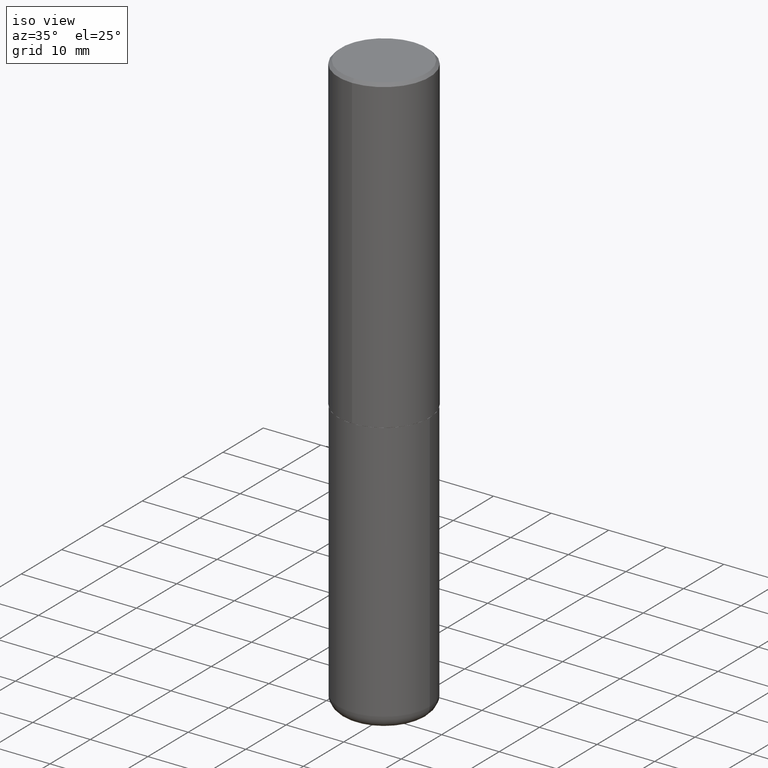
[diagram: clean part render]
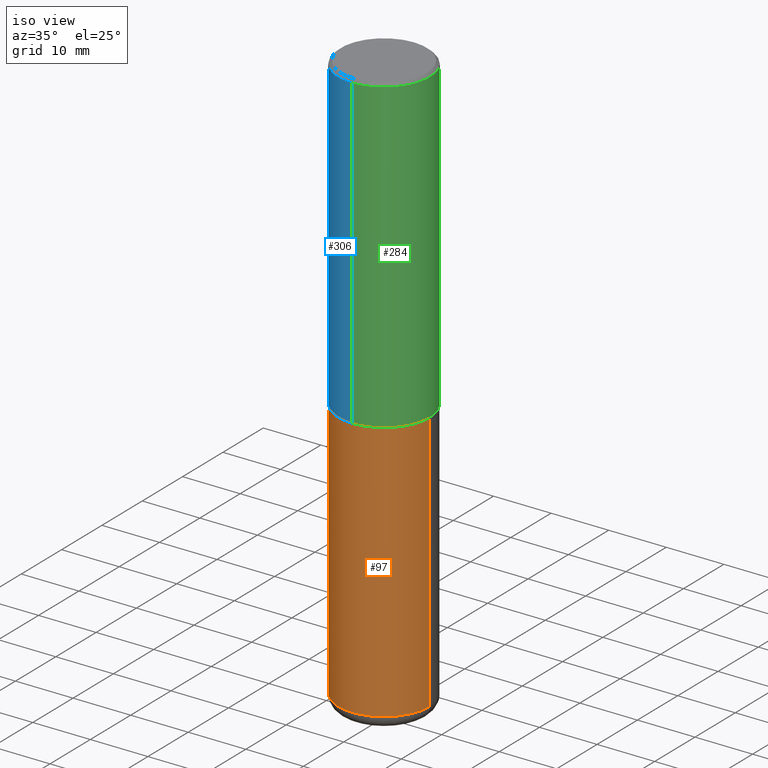
[diagram: same view with three faces highlighted in distinct colors, each labeled with its STEP entity id]
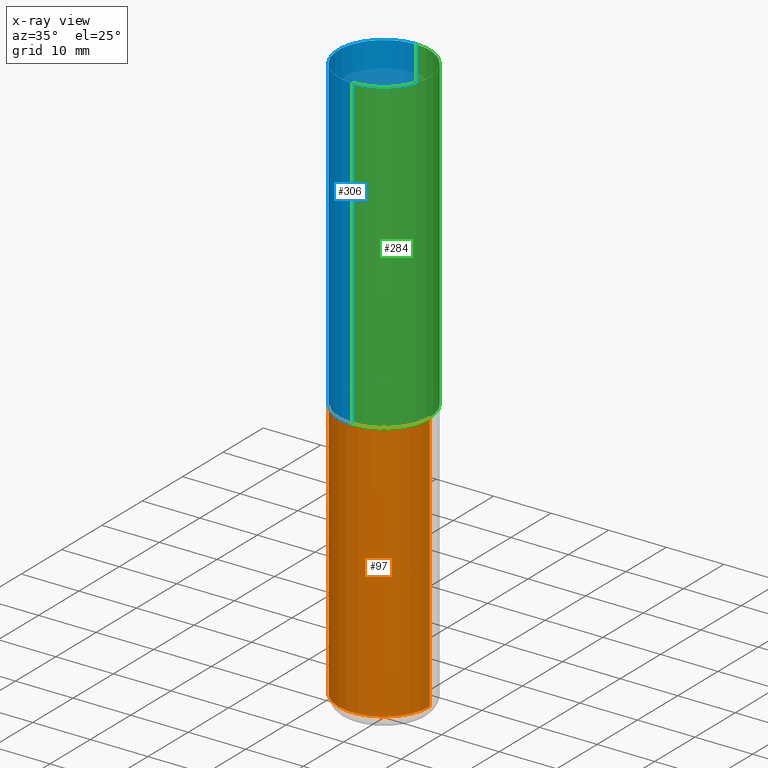
[diagram: x-ray of the same camera — body ghosted, the three highlighted faces saturated]
A machine part, iso view with three faces highlighted in distinct colors.
The next image is the same camera in x-ray (body ghosted, the three faces saturated) — at least one of them is partly hidden behind the body in this view.
Their STEP definitions:

[orange] entity #97 — the highlighted cylindrical surface (partial cylindrical patch) has radius 7.9375 mm, axis along (-0, 0, 1).
#19 = ORIENTED_EDGE ( 'NONE', *, *, #157, .F. ) ;
#21 = EDGE_CURVE ( 'NONE', #214, #342, #233, .T. ) ;
#40 = DIRECTION ( 'NONE',  ( 1.000000000000000000, -6.982962677686266711E-15, 4.876176775795936353E-29 ) ) ;
#62 = DIRECTION ( 'NONE',  ( -2.445468806185136877E-29, 3.491481338843145188E-15, 1.000000000000000000 ) ) ;
#65 = CARTESIAN_POINT ( 'NONE',  ( 0.3125000000000000000, -2.182175836776958347E-15, 1.523805242436230075E-29 ) ) ;
#71 = ORIENTED_EDGE ( 'NONE', *, *, #21, .T. ) ;
#74 = LINE ( 'NONE', #65, #406 ) ;
#84 = VERTEX_POINT ( 'NONE', #325 ) ;
#97 = ADVANCED_FACE ( 'NONE', ( #408 ), #409, .T. ) ;
#104 = CARTESIAN_POINT ( 'NONE',  ( 5.196621213143414147E-29, -7.419397845041682046E-15, -2.124999999999999556 ) ) ;
#111 = DIRECTION ( 'NONE',  ( 1.000000000000000000, -6.982962677686269077E-15, 0.000000000000000000 ) ) ;
#122 = AXIS2_PLACEMENT_3D ( 'NONE', #177, #266, #111 ) ;
#155 = ORIENTED_EDGE ( 'NONE', *, *, #345, .F. ) ;
#157 = EDGE_CURVE ( 'NONE', #214, #287, #219, .T. ) ;
#177 = CARTESIAN_POINT ( 'NONE',  ( 9.561783032183883600E-29, -1.365169203487670064E-14, -3.910000000000000142 ) ) ;
#187 = ORIENTED_EDGE ( 'NONE', *, *, #202, .T. ) ;
#202 = EDGE_CURVE ( 'NONE', #342, #84, #74, .T. ) ;
#214 = VERTEX_POINT ( 'NONE', #260 ) ;
#219 = LINE ( 'NONE', #385, #280 ) ;
#223 = EDGE_LOOP ( 'NONE', ( #19, #71, #187, #155 ) ) ;
#233 = CIRCLE ( 'NONE', #122, 0.3125000000000000000 ) ;
#260 = CARTESIAN_POINT ( 'NONE',  ( -0.3125000000000000000, -1.143124598562638756E-14, -3.910000000000000142 ) ) ;
#266 = DIRECTION ( 'NONE',  ( -2.445468806185136597E-29, 3.491481338843145583E-15, 1.000000000000000000 ) ) ;
#280 = VECTOR ( 'NONE', #62, 39.37007874015748143 ) ;
#287 = VERTEX_POINT ( 'NONE', #415 ) ;
#291 = DIRECTION ( 'NONE',  ( -2.445468806185136877E-29, 3.491481338843145188E-15, 1.000000000000000000 ) ) ;
#292 = DIRECTION ( 'NONE',  ( 1.000000000000000000, -6.982962677686265133E-15, 0.000000000000000000 ) ) ;
#325 = CARTESIAN_POINT ( 'NONE',  ( 0.3125000000000000000, -9.601573681818640393E-15, -2.124999999999999556 ) ) ;
#327 = DIRECTION ( 'NONE',  ( -2.445468806185136597E-29, 3.491481338843145583E-15, 1.000000000000000000 ) ) ;
#331 = DIRECTION ( 'NONE',  ( -2.445468806185136597E-29, 3.491481338843145583E-15, 1.000000000000000000 ) ) ;
#342 = VERTEX_POINT ( 'NONE', #401 ) ;
#345 = EDGE_CURVE ( 'NONE', #287, #84, #417, .T. ) ;
#352 = AXIS2_PLACEMENT_3D ( 'NONE', #402, #327, #40 ) ;
#378 = AXIS2_PLACEMENT_3D ( 'NONE', #104, #331, #292 ) ;
#385 = CARTESIAN_POINT ( 'NONE',  ( -0.3125000000000000000, 2.220446049250313081E-15, -1.537167215704658232E-29 ) ) ;
#401 = CARTESIAN_POINT ( 'NONE',  ( 0.3125000000000000000, -1.583386787165366057E-14, -3.910000000000000142 ) ) ;
#402 = CARTESIAN_POINT ( 'NONE',  ( 0.000000000000000000, 0.000000000000000000, 0.000000000000000000 ) ) ;
#406 = VECTOR ( 'NONE', #291, 39.37007874015748143 ) ;
#408 = FACE_OUTER_BOUND ( 'NONE', #223, .T. ) ;
#409 = CYLINDRICAL_SURFACE ( 'NONE', #352, 0.3125000000000000000 ) ;
#415 = CARTESIAN_POINT ( 'NONE',  ( -0.3125000000000000000, -8.315098890708878264E-15, -2.124999999999999556 ) ) ;
#417 = CIRCLE ( 'NONE', #378, 0.3125000000000000000 ) ;

[blue] entity #306 — the highlighted cylindrical surface (partial cylindrical patch) has radius 7.9375 mm, axis along (-0, 0, 1).
#7 = EDGE_CURVE ( 'NONE', #278, #22, #373, .T. ) ;
#22 = VERTEX_POINT ( 'NONE', #301 ) ;
#32 = LINE ( 'NONE', #101, #134 ) ;
#34 = DIRECTION ( 'NONE',  ( -6.982962677686265133E-15, -1.000000000000000000, 3.492364022149836358E-15 ) ) ;
#56 = ORIENTED_EDGE ( 'NONE', *, *, #193, .T. ) ;
#69 = DIRECTION ( 'NONE',  ( -2.444852431726452894E-29, 3.492364022149836358E-15, 1.000000000000000000 ) ) ;
#85 = VERTEX_POINT ( 'NONE', #213 ) ;
#96 = DIRECTION ( 'NONE',  ( -2.444852431726452614E-29, 3.492364022149836358E-15, 1.000000000000000000 ) ) ;
#101 = CARTESIAN_POINT ( 'NONE',  ( -2.182175836776959136E-15, -0.3125000000000001665, 1.091363756921824478E-15 ) ) ;
#128 = CIRCLE ( 'NONE', #250, 0.3125000000000002776 ) ;
#134 = VECTOR ( 'NONE', #96, 39.37007874015748143 ) ;
#148 = ORIENTED_EDGE ( 'NONE', *, *, #279, .F. ) ;
#150 = DIRECTION ( 'NONE',  ( -2.444852431726452894E-29, 3.492364022149836358E-15, 1.000000000000000000 ) ) ;
#154 = CYLINDRICAL_SURFACE ( 'NONE', #204, 0.3125000000000001665 ) ;
#166 = VECTOR ( 'NONE', #180, 39.37007874015748143 ) ;
#172 = DIRECTION ( 'NONE',  ( -2.444852431726452894E-29, 3.492364022149836358E-15, 1.000000000000000000 ) ) ;
#173 = CIRCLE ( 'NONE', #182, 0.3125000000000000000 ) ;
#180 = DIRECTION ( 'NONE',  ( -2.444852431726452614E-29, 3.492364022149836358E-15, 1.000000000000000000 ) ) ;
#182 = AXIS2_PLACEMENT_3D ( 'NONE', #396, #172, #399 ) ;
#193 = EDGE_CURVE ( 'NONE', #318, #85, #32, .T. ) ;
#200 = ORIENTED_EDGE ( 'NONE', *, *, #7, .F. ) ;
#204 = AXIS2_PLACEMENT_3D ( 'NONE', #349, #69, #34 ) ;
#206 = CARTESIAN_POINT ( 'NONE',  ( 5.192866564986985411E-29, -7.417781183046251262E-15, -2.123999999999999666 ) ) ;
#213 = CARTESIAN_POINT ( 'NONE',  ( -2.143905624303602824E-15, -0.3125000000000000555, -0.01999999999999897693 ) ) ;
#250 = AXIS2_PLACEMENT_3D ( 'NONE', #206, #150, #404 ) ;
#278 = VERTEX_POINT ( 'NONE', #322 ) ;
#279 = EDGE_CURVE ( 'NONE', #22, #85, #173, .T. ) ;
#301 = CARTESIAN_POINT ( 'NONE',  ( 2.182175836776958741E-15, 0.3124999999999999445, -0.02000000000000116268 ) ) ;
#306 = ADVANCED_FACE ( 'NONE', ( #343 ), #154, .T. ) ;
#316 = EDGE_CURVE ( 'NONE', #278, #318, #128, .T. ) ;
#318 = VERTEX_POINT ( 'NONE', #369 ) ;
#322 = CARTESIAN_POINT ( 'NONE',  ( 2.220446049250340297E-15, 0.3124999999999928391, -2.124000000000000554 ) ) ;
#334 = CARTESIAN_POINT ( 'NONE',  ( 2.220446049250313475E-15, 0.3125000000000001665, -1.091363756921824478E-15 ) ) ;
#343 = FACE_OUTER_BOUND ( 'NONE', #387, .T. ) ;
#349 = CARTESIAN_POINT ( 'NONE',  ( 0.000000000000000000, 0.000000000000000000, 0.000000000000000000 ) ) ;
#369 = CARTESIAN_POINT ( 'NONE',  ( -2.182175836776908254E-15, -0.3125000000000077161, -2.123999999999998334 ) ) ;
#373 = LINE ( 'NONE', #334, #166 ) ;
#380 = ORIENTED_EDGE ( 'NONE', *, *, #316, .T. ) ;
#387 = EDGE_LOOP ( 'NONE', ( #200, #380, #56, #148 ) ) ;
#396 = CARTESIAN_POINT ( 'NONE',  ( 4.889704863452922148E-31, -6.984728044299695791E-17, -0.02000000000000006981 ) ) ;
#399 = DIRECTION ( 'NONE',  ( -6.982962677686265133E-15, -1.000000000000000000, 3.496765431890256920E-15 ) ) ;
#404 = DIRECTION ( 'NONE',  ( -6.982962677686265922E-15, -1.000000000000000000, 3.496765431890253764E-15 ) ) ;

[green] entity #284 — the highlighted cylindrical surface (partial cylindrical patch) has radius 7.9375 mm, axis along (-0, 0, 1).
#7 = EDGE_CURVE ( 'NONE', #278, #22, #373, .T. ) ;
#22 = VERTEX_POINT ( 'NONE', #301 ) ;
#30 = DIRECTION ( 'NONE',  ( -6.982962677686265133E-15, -1.000000000000000000, 3.496765431890256920E-15 ) ) ;
#32 = LINE ( 'NONE', #101, #134 ) ;
#61 = ORIENTED_EDGE ( 'NONE', *, *, #243, .F. ) ;
#79 = DIRECTION ( 'NONE',  ( -2.444852431726452894E-29, 3.492364022149836358E-15, 1.000000000000000000 ) ) ;
#85 = VERTEX_POINT ( 'NONE', #213 ) ;
#87 = DIRECTION ( 'NONE',  ( -2.444852431726452894E-29, 3.492364022149836358E-15, 1.000000000000000000 ) ) ;
#96 = DIRECTION ( 'NONE',  ( -2.444852431726452614E-29, 3.492364022149836358E-15, 1.000000000000000000 ) ) ;
#100 = ORIENTED_EDGE ( 'NONE', *, *, #193, .F. ) ;
#101 = CARTESIAN_POINT ( 'NONE',  ( -2.182175836776959136E-15, -0.3125000000000001665, 1.091363756921824478E-15 ) ) ;
#113 = ORIENTED_EDGE ( 'NONE', *, *, #329, .T. ) ;
#123 = CARTESIAN_POINT ( 'NONE',  ( 0.000000000000000000, 0.000000000000000000, 0.000000000000000000 ) ) ;
#131 = CARTESIAN_POINT ( 'NONE',  ( 4.889704863452922148E-31, -6.984728044299695791E-17, -0.02000000000000006981 ) ) ;
#134 = VECTOR ( 'NONE', #96, 39.37007874015748143 ) ;
#137 = CARTESIAN_POINT ( 'NONE',  ( 5.192866564986985411E-29, -7.417781183046251262E-15, -2.123999999999999666 ) ) ;
#142 = DIRECTION ( 'NONE',  ( -6.982962677686265922E-15, -1.000000000000000000, 3.496765431890253764E-15 ) ) ;
#143 = FACE_OUTER_BOUND ( 'NONE', #391, .T. ) ;
#166 = VECTOR ( 'NONE', #180, 39.37007874015748143 ) ;
#180 = DIRECTION ( 'NONE',  ( -2.444852431726452614E-29, 3.492364022149836358E-15, 1.000000000000000000 ) ) ;
#193 = EDGE_CURVE ( 'NONE', #318, #85, #32, .T. ) ;
#213 = CARTESIAN_POINT ( 'NONE',  ( -2.143905624303602824E-15, -0.3125000000000000555, -0.01999999999999897693 ) ) ;
#222 = AXIS2_PLACEMENT_3D ( 'NONE', #123, #87, #383 ) ;
#243 = EDGE_CURVE ( 'NONE', #85, #22, #384, .T. ) ;
#249 = ORIENTED_EDGE ( 'NONE', *, *, #7, .T. ) ;
#278 = VERTEX_POINT ( 'NONE', #322 ) ;
#284 = ADVANCED_FACE ( 'NONE', ( #143 ), #375, .T. ) ;
#301 = CARTESIAN_POINT ( 'NONE',  ( 2.182175836776958741E-15, 0.3124999999999999445, -0.02000000000000116268 ) ) ;
#304 = CIRCLE ( 'NONE', #359, 0.3125000000000002776 ) ;
#318 = VERTEX_POINT ( 'NONE', #369 ) ;
#322 = CARTESIAN_POINT ( 'NONE',  ( 2.220446049250340297E-15, 0.3124999999999928391, -2.124000000000000554 ) ) ;
#329 = EDGE_CURVE ( 'NONE', #318, #278, #304, .T. ) ;
#334 = CARTESIAN_POINT ( 'NONE',  ( 2.220446049250313475E-15, 0.3125000000000001665, -1.091363756921824478E-15 ) ) ;
#337 = AXIS2_PLACEMENT_3D ( 'NONE', #131, #392, #30 ) ;
#359 = AXIS2_PLACEMENT_3D ( 'NONE', #137, #79, #142 ) ;
#369 = CARTESIAN_POINT ( 'NONE',  ( -2.182175836776908254E-15, -0.3125000000000077161, -2.123999999999998334 ) ) ;
#373 = LINE ( 'NONE', #334, #166 ) ;
#375 = CYLINDRICAL_SURFACE ( 'NONE', #222, 0.3125000000000001665 ) ;
#383 = DIRECTION ( 'NONE',  ( -6.982962677686265133E-15, -1.000000000000000000, 3.492364022149836358E-15 ) ) ;
#384 = CIRCLE ( 'NONE', #337, 0.3125000000000000000 ) ;
#391 = EDGE_LOOP ( 'NONE', ( #113, #249, #61, #100 ) ) ;
#392 = DIRECTION ( 'NONE',  ( -2.444852431726452894E-29, 3.492364022149836358E-15, 1.000000000000000000 ) ) ;